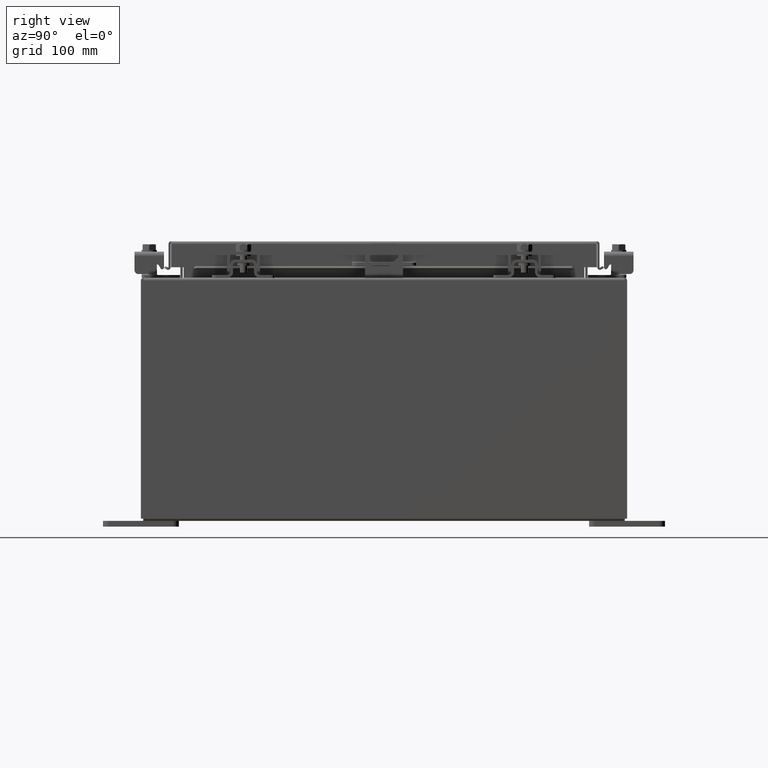
[diagram: clean part render]
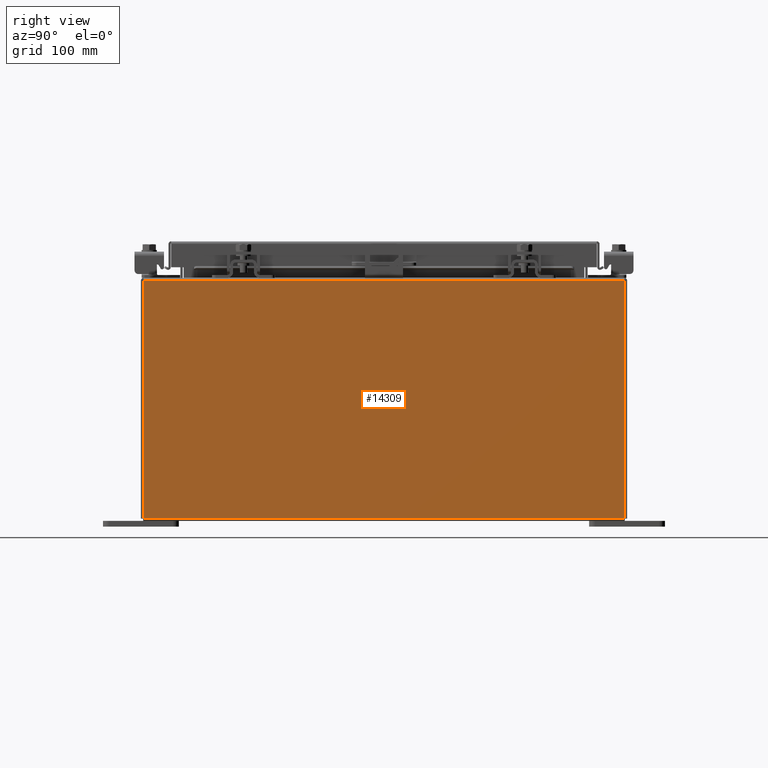
[diagram: same view with one face highlighted and labeled with its STEP entity id]
A machine part, right view. The second image highlights one B-rep face of the part: STEP entity #14309.
In plain terms, the highlighted planar face has unit normal (-1, 0, 0).
Its self-contained STEP definition (entity closure, byte-faithful):
#1175 = CARTESIAN_POINT ( 'NONE',  ( 6.000000000000029300, 7.925300000000000900, 7.837599999999992100 ) ) ;
#1804 = EDGE_CURVE ( 'NONE', #23732, #2651, #7006, .T. ) ;
#1985 = EDGE_CURVE ( 'NONE', #24493, #21898, #19263, .T. ) ;
#2651 = VERTEX_POINT ( 'NONE', #11891 ) ;
#3221 = VECTOR ( 'NONE', #11830, 39.37007874015748100 ) ;
#5618 = AXIS2_PLACEMENT_3D ( 'NONE', #16854, #22898, #10872 ) ;
#7006 = LINE ( 'NONE', #1175, #12387 ) ;
#7761 = EDGE_LOOP ( 'NONE', ( #12794, #16242, #13056, #9995 ) ) ;
#7767 = CARTESIAN_POINT ( 'NONE',  ( 5.999999999999999100, -7.925300000000000000, 0.01299999999999984700 ) ) ;
#8838 = PLANE ( 'NONE',  #5618 ) ;
#8897 = CARTESIAN_POINT ( 'NONE',  ( 5.999999999999999100, 7.925299999999998200, -2.094279157733390500E-014 ) ) ;
#9995 = ORIENTED_EDGE ( 'NONE', *, *, #14929, .T. ) ;
#10300 = CARTESIAN_POINT ( 'NONE',  ( 6.000000000000029300, 7.925300000000000900, 7.837599999999992100 ) ) ;
#10872 = DIRECTION ( 'NONE',  ( 3.446996320220386900E-015, 0.0000000000000000000, 1.000000000000000000 ) ) ;
#11004 = DIRECTION ( 'NONE',  ( -3.446996320220387700E-015, -1.378798528088154900E-016, -1.000000000000000000 ) ) ;
#11379 = CARTESIAN_POINT ( 'NONE',  ( 5.999999999999999100, 7.925300000000000000, 0.01299999999999984700 ) ) ;
#11830 = DIRECTION ( 'NONE',  ( -0.0000000000000000000, -1.000000000000000000, -0.0000000000000000000 ) ) ;
#11891 = CARTESIAN_POINT ( 'NONE',  ( 6.000000000000026600, -7.925300000000000900, 7.837599999999998300 ) ) ;
#12387 = VECTOR ( 'NONE', #15227, 39.37007874015748100 ) ;
#12794 = ORIENTED_EDGE ( 'NONE', *, *, #1804, .T. ) ;
#13056 = ORIENTED_EDGE ( 'NONE', *, *, #1985, .F. ) ;
#13934 = VECTOR ( 'NONE', #21011, 39.37007874015748100 ) ;
#14309 = ADVANCED_FACE ( 'NONE', ( #22451 ), #8838, .F. ) ;
#14929 = EDGE_CURVE ( 'NONE', #24493, #23732, #24624, .T. ) ;
#15227 = DIRECTION ( 'NONE',  ( -0.0000000000000000000, -1.000000000000000000, -0.0000000000000000000 ) ) ;
#16242 = ORIENTED_EDGE ( 'NONE', *, *, #25009, .T. ) ;
#16854 = CARTESIAN_POINT ( 'NONE',  ( 5.999999999999999100, 0.0000000000000000000, -2.094279157733390500E-014 ) ) ;
#18640 = CARTESIAN_POINT ( 'NONE',  ( 5.999999999999999100, -7.925300000000000000, 0.01299999999999984800 ) ) ;
#19263 = LINE ( 'NONE', #7767, #3221 ) ;
#20792 = LINE ( 'NONE', #23029, #21412 ) ;
#21011 = DIRECTION ( 'NONE',  ( 3.446996320220387700E-015, 0.0000000000000000000, 1.000000000000000000 ) ) ;
#21412 = VECTOR ( 'NONE', #11004, 39.37007874015748100 ) ;
#21898 = VERTEX_POINT ( 'NONE', #18640 ) ;
#22451 = FACE_OUTER_BOUND ( 'NONE', #7761, .T. ) ;
#22898 = DIRECTION ( 'NONE',  ( -1.000000000000000000, 0.0000000000000000000, 3.446996320220386900E-015 ) ) ;
#23029 = CARTESIAN_POINT ( 'NONE',  ( 5.999999999999999100, -7.925300000000000900, -1.985005237986820200E-014 ) ) ;
#23732 = VERTEX_POINT ( 'NONE', #10300 ) ;
#24493 = VERTEX_POINT ( 'NONE', #11379 ) ;
#24624 = LINE ( 'NONE', #8897, #13934 ) ;
#25009 = EDGE_CURVE ( 'NONE', #2651, #21898, #20792, .T. ) ;